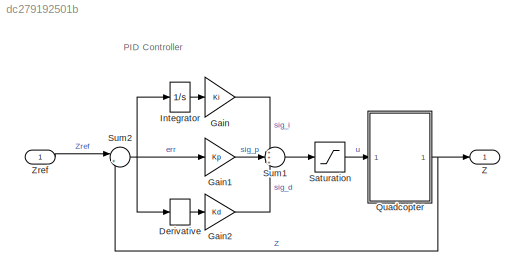
MODEL slx_dc279192501b
KIND model
CONFIG AbsTol = auto
CONFIG EnableMultiTasking = on
CONFIG FixedStep = 0.01
CONFIG MaxStep = auto
CONFIG MinStep = auto
CONFIG RelTol = 1e-3
CONFIG SampleTimeConstraint = Unconstrained
CONFIG Solver = FixedStepAuto
CONFIG SolverName = FixedStepAuto
CONFIG StartTime = 0.0
CONFIG StopTime = 30.0
WORKSPACE source: mxarray member
WORKSPACE Kd = 10
WORKSPACE Ki = 1
WORKSPACE Kp = 5
BLOCK [Derivative] Derivative
BLOCK [Gain] Gain
  Gain = Ki
BLOCK [Gain] Gain1
  Gain = Kp
BLOCK [Gain] Gain2
  Gain = Kd
BLOCK [Integrator] Integrator
  Ports = [1, 1]
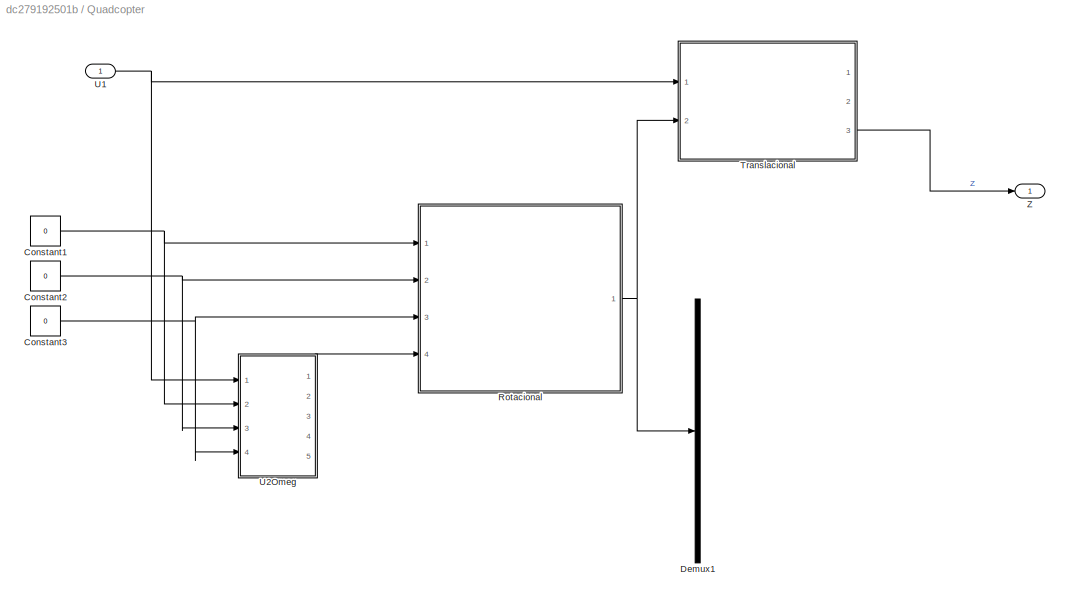
BLOCK [SubSystem] Quadcopter
  Ports = [1, 1]
  RequestExecContextInheritance = off
BLOCK [Constant] Quadcopter/Constant1
  Value = 0
BLOCK [Constant] Quadcopter/Constant2
  Value = 0
BLOCK [Constant] Quadcopter/Constant3
  Value = 0
BLOCK [Demux] Quadcopter/Demux1
  Outputs = 3
  Ports = [1, 3]
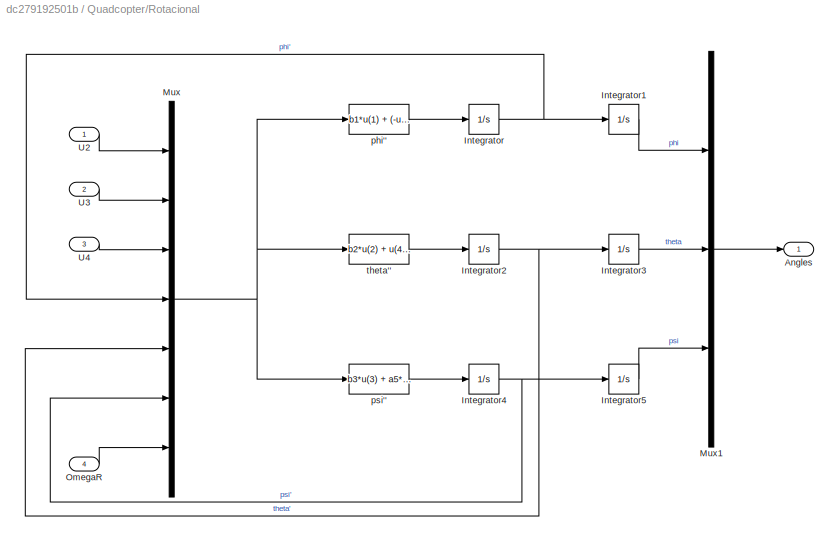
BLOCK [SubSystem] Quadcopter/Rotacional
  Ports = [4, 1]
  RequestExecContextInheritance = off
BLOCK [Outport] Quadcopter/Rotacional/Angles
BLOCK [Integrator] Quadcopter/Rotacional/Integrator
  Ports = [1, 1]
BLOCK [Integrator] Quadcopter/Rotacional/Integrator1
  Ports = [1, 1]
BLOCK [Integrator] Quadcopter/Rotacional/Integrator2
  Ports = [1, 1]
BLOCK [Integrator] Quadcopter/Rotacional/Integrator3
  Ports = [1, 1]
BLOCK [Integrator] Quadcopter/Rotacional/Integrator4
  Ports = [1, 1]
BLOCK [Integrator] Quadcopter/Rotacional/Integrator5
  Ports = [1, 1]
BLOCK [Mux] Quadcopter/Rotacional/Mux
  DisplayOption = bar
  Inputs = 7
  Ports = [7, 1]
BLOCK [Mux] Quadcopter/Rotacional/Mux1
  DisplayOption = bar
  Inputs = 3
  Ports = [3, 1]
BLOCK [Inport] Quadcopter/Rotacional/OmegaR
  Port = 4
BLOCK [Inport] Quadcopter/Rotacional/U2
BLOCK [Inport] Quadcopter/Rotacional/U3
  Port = 2
BLOCK [Inport] Quadcopter/Rotacional/U4
  Port = 3
BLOCK [Fcn] Quadcopter/Rotacional/phi''
  Expr = b1*u(1) + (-u(5))*u(7)*a2 + a1*u(5)*u(6)
BLOCK [Fcn] Quadcopter/Rotacional/psi''
  Expr = b3*u(3) + a5*u(4)*u(5)
BLOCK [Fcn] Quadcopter/Rotacional/theta''
  Expr = b2*u(2) + u(4)*u(7)*a4 + a3*u(4)*u(6)
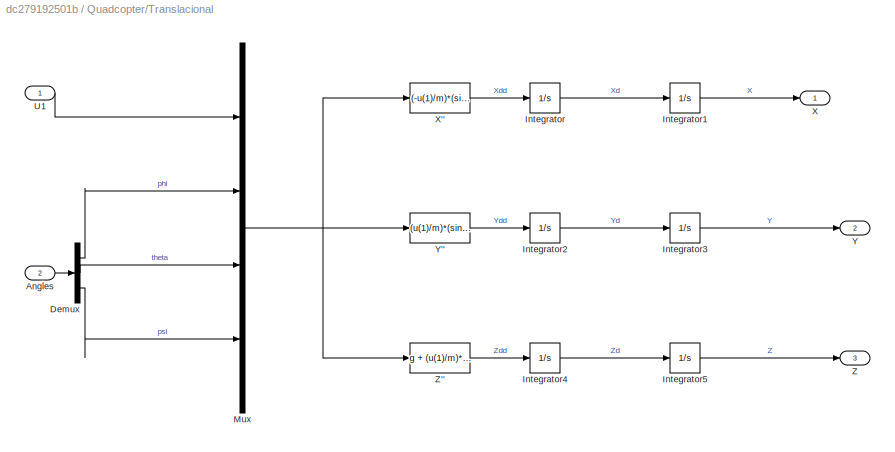
BLOCK [SubSystem] Quadcopter/Translacional
  Ports = [2, 3]
  RequestExecContextInheritance = off
BLOCK [Inport] Quadcopter/Translacional/Angles
  Port = 2
BLOCK [Demux] Quadcopter/Translacional/Demux
  Outputs = 3
  Ports = [1, 3]
BLOCK [Integrator] Quadcopter/Translacional/Integrator
  Ports = [1, 1]
BLOCK [Integrator] Quadcopter/Translacional/Integrator1
  Ports = [1, 1]
BLOCK [Integrator] Quadcopter/Translacional/Integrator2
  Ports = [1, 1]
BLOCK [Integrator] Quadcopter/Translacional/Integrator3
  Ports = [1, 1]
BLOCK [Integrator] Quadcopter/Translacional/Integrator4
  Ports = [1, 1]
BLOCK [Integrator] Quadcopter/Translacional/Integrator5
  Ports = [1, 1]
BLOCK [Mux] Quadcopter/Translacional/Mux
  DisplayOption = bar
  Ports = [4, 1]
BLOCK [Inport] Quadcopter/Translacional/U1
BLOCK [Outport] Quadcopter/Translacional/X
BLOCK [Fcn] Quadcopter/Translacional/X''
  Expr = (-u(1)/m)*(sin(u(2))*sin(u(4)) + cos(u(2))*sin(u(3))*cos(u(4)))
BLOCK [Outport] Quadcopter/Translacional/Y
  Port = 2
BLOCK [Fcn] Quadcopter/Translacional/Y''
  Expr = (u(1)/m)*(sin(u(2))*cos(u(4)) - cos(u(2))*sin(u(3))*sin(u(4)))
BLOCK [Outport] Quadcopter/Translacional/Z
  Port = 3
BLOCK [Fcn] Quadcopter/Translacional/Z''
  Expr = g + (u(1)/m)*(cos(u(2))*cos(u(3)))
BLOCK [Inport] Quadcopter/U1
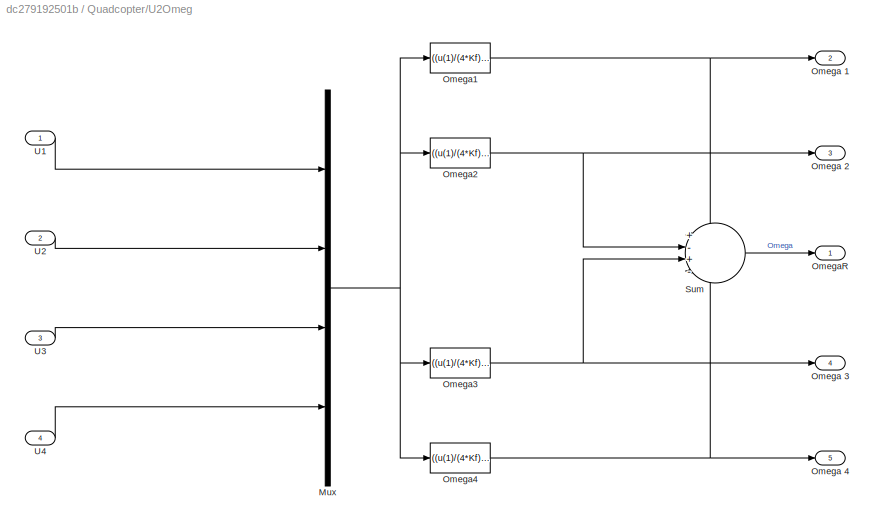
BLOCK [SubSystem] Quadcopter/U2Omeg
  Ports = [4, 5]
  RequestExecContextInheritance = off
BLOCK [Mux] Quadcopter/U2Omeg/Mux
  DisplayOption = bar
  Ports = [4, 1]
BLOCK [Outport] Quadcopter/U2Omeg/Omega 1
  Port = 2
BLOCK [Outport] Quadcopter/U2Omeg/Omega 2
  Port = 3
BLOCK [Outport] Quadcopter/U2Omeg/Omega 3
  Port = 4
BLOCK [Outport] Quadcopter/U2Omeg/Omega 4
  Port = 5
BLOCK [Fcn] Quadcopter/U2Omeg/Omega1
  Expr = ((u(1)/(4*Kf)) + (u(3)/(2*Kf)) + (u(4)/(4*Km)))^(1/2)
BLOCK [Fcn] Quadcopter/U2Omeg/Omega2
  Expr = ((u(1)/(4*Kf)) - (u(2)/(2*Kf)) - (u(4)/(4*Km)))^(1/2)
BLOCK [Fcn] Quadcopter/U2Omeg/Omega3
  Expr = ((u(1)/(4*Kf)) - (u(3)/(2*Kf)) + (u(4)/(4*Km)))^(1/2)
BLOCK [Fcn] Quadcopter/U2Omeg/Omega4
  Expr = ((u(1)/(4*Kf)) + (u(2)/(2*Kf)) - (u(4)/(4*Km)))^(1/2)
BLOCK [Outport] Quadcopter/U2Omeg/OmegaR
BLOCK [Sum] Quadcopter/U2Omeg/Sum
  Inputs = +-+-
  Ports = [4, 1]
BLOCK [Inport] Quadcopter/U2Omeg/U1 
BLOCK [Inport] Quadcopter/U2Omeg/U2 
  Port = 2
BLOCK [Inport] Quadcopter/U2Omeg/U3 
  Port = 3
BLOCK [Inport] Quadcopter/U2Omeg/U4 
  Port = 4
BLOCK [Outport] Quadcopter/Z
BLOCK [Saturate] Saturation
  LowerLimit = -15
  UpperLimit = 15
BLOCK [Sum] Sum1
  Inputs = +++
  Ports = [3, 1]
BLOCK [Sum] Sum2
  Inputs = |+-
  Ports = [2, 1]
BLOCK [Outport] Z
BLOCK [Inport] Zref
ANNOTATION (root): PID Controller
LINE Derivative:1 -> Gain2:1
LINE Gain1:1 -> Sum1:2
LINE Gain2:1 -> Sum1:3
LINE Gain:1 -> Sum1:1
LINE Integrator:1 -> Gain:1
NET Quadcopter/Constant1:1 -> Quadcopter/Rotacional:1, Quadcopter/U2Omeg:2
NET Quadcopter/Constant2:1 -> Quadcopter/Rotacional:2, Quadcopter/U2Omeg:3
NET Quadcopter/Constant3:1 -> Quadcopter/Rotacional:3, Quadcopter/U2Omeg:4
LINE Quadcopter/Rotacional/Integrator1:1 -> Quadcopter/Rotacional/Mux1:1
NET Quadcopter/Rotacional/Integrator2:1 -> Quadcopter/Rotacional/Integrator3:1, Quadcopter/Rotacional/Mux:5
LINE Quadcopter/Rotacional/Integrator3:1 -> Quadcopter/Rotacional/Mux1:2
NET Quadcopter/Rotacional/Integrator4:1 -> Quadcopter/Rotacional/Integrator5:1, Quadcopter/Rotacional/Mux:6
LINE Quadcopter/Rotacional/Integrator5:1 -> Quadcopter/Rotacional/Mux1:3
NET Quadcopter/Rotacional/Integrator:1 -> Quadcopter/Rotacional/Integrator1:1, Quadcopter/Rotacional/Mux:4
LINE Quadcopter/Rotacional/Mux1:1 -> Quadcopter/Rotacional/Angles:1
NET Quadcopter/Rotacional/Mux:1 -> Quadcopter/Rotacional/phi'':1, Quadcopter/Rotacional/psi'':1, Quadcopter/Rotacional/theta'':1
LINE Quadcopter/Rotacional/OmegaR:1 -> Quadcopter/Rotacional/Mux:7
LINE Quadcopter/Rotacional/U2:1 -> Quadcopter/Rotacional/Mux:1
LINE Quadcopter/Rotacional/U3:1 -> Quadcopter/Rotacional/Mux:2
LINE Quadcopter/Rotacional/U4:1 -> Quadcopter/Rotacional/Mux:3
LINE Quadcopter/Rotacional/phi'':1 -> Quadcopter/Rotacional/Integrator:1
LINE Quadcopter/Rotacional/psi'':1 -> Quadcopter/Rotacional/Integrator4:1
LINE Quadcopter/Rotacional/theta'':1 -> Quadcopter/Rotacional/Integrator2:1
NET Quadcopter/Rotacional:1 -> Quadcopter/Demux1:1, Quadcopter/Translacional:2
LINE Quadcopter/Translacional/Angles:1 -> Quadcopter/Translacional/Demux:1
LINE Quadcopter/Translacional/Demux:1 -> Quadcopter/Translacional/Mux:2
LINE Quadcopter/Translacional/Demux:2 -> Quadcopter/Translacional/Mux:3
LINE Quadcopter/Translacional/Demux:3 -> Quadcopter/Translacional/Mux:4
LINE Quadcopter/Translacional/Integrator1:1 -> Quadcopter/Translacional/X:1
LINE Quadcopter/Translacional/Integrator2:1 -> Quadcopter/Translacional/Integrator3:1
LINE Quadcopter/Translacional/Integrator3:1 -> Quadcopter/Translacional/Y:1
LINE Quadcopter/Translacional/Integrator4:1 -> Quadcopter/Translacional/Integrator5:1
LINE Quadcopter/Translacional/Integrator5:1 -> Quadcopter/Translacional/Z:1
LINE Quadcopter/Translacional/Integrator:1 -> Quadcopter/Translacional/Integrator1:1
NET Quadcopter/Translacional/Mux:1 -> Quadcopter/Translacional/X'':1, Quadcopter/Translacional/Y'':1, Quadcopter/Translacional/Z'':1
LINE Quadcopter/Translacional/U1:1 -> Quadcopter/Translacional/Mux:1
LINE Quadcopter/Translacional/X'':1 -> Quadcopter/Translacional/Integrator:1
LINE Quadcopter/Translacional/Y'':1 -> Quadcopter/Translacional/Integrator2:1
LINE Quadcopter/Translacional/Z'':1 -> Quadcopter/Translacional/Integrator4:1
LINE Quadcopter/Translacional:3 -> Quadcopter/Z:1
NET Quadcopter/U1:1 -> Quadcopter/Translacional:1, Quadcopter/U2Omeg:1
NET Quadcopter/U2Omeg/Mux:1 -> Quadcopter/U2Omeg/Omega1:1, Quadcopter/U2Omeg/Omega2:1, Quadcopter/U2Omeg/Omega3:1, Quadcopter/U2Omeg/Omega4:1
NET Quadcopter/U2Omeg/Omega1:1 -> Quadcopter/U2Omeg/Omega 1:1, Quadcopter/U2Omeg/Sum:1
NET Quadcopter/U2Omeg/Omega2:1 -> Quadcopter/U2Omeg/Omega 2:1, Quadcopter/U2Omeg/Sum:2
NET Quadcopter/U2Omeg/Omega3:1 -> Quadcopter/U2Omeg/Omega 3:1, Quadcopter/U2Omeg/Sum:3
NET Quadcopter/U2Omeg/Omega4:1 -> Quadcopter/U2Omeg/Omega 4:1, Quadcopter/U2Omeg/Sum:4
LINE Quadcopter/U2Omeg/Sum:1 -> Quadcopter/U2Omeg/OmegaR:1
LINE Quadcopter/U2Omeg/U1 :1 -> Quadcopter/U2Omeg/Mux:1
LINE Quadcopter/U2Omeg/U2 :1 -> Quadcopter/U2Omeg/Mux:2
LINE Quadcopter/U2Omeg/U3 :1 -> Quadcopter/U2Omeg/Mux:3
LINE Quadcopter/U2Omeg/U4 :1 -> Quadcopter/U2Omeg/Mux:4
LINE Quadcopter/U2Omeg:1 -> Quadcopter/Rotacional:4
NET Quadcopter:1 -> Sum2:2, Z:1
LINE Saturation:1 -> Quadcopter:1
LINE Sum1:1 -> Saturation:1
NET Sum2:1 -> Derivative:1, Gain1:1, Integrator:1
LINE Zref:1 -> Sum2:1
note: NET lines group one-source signal fan-out (src -> all destinations, sorted); 1:1 wires keep LINE
